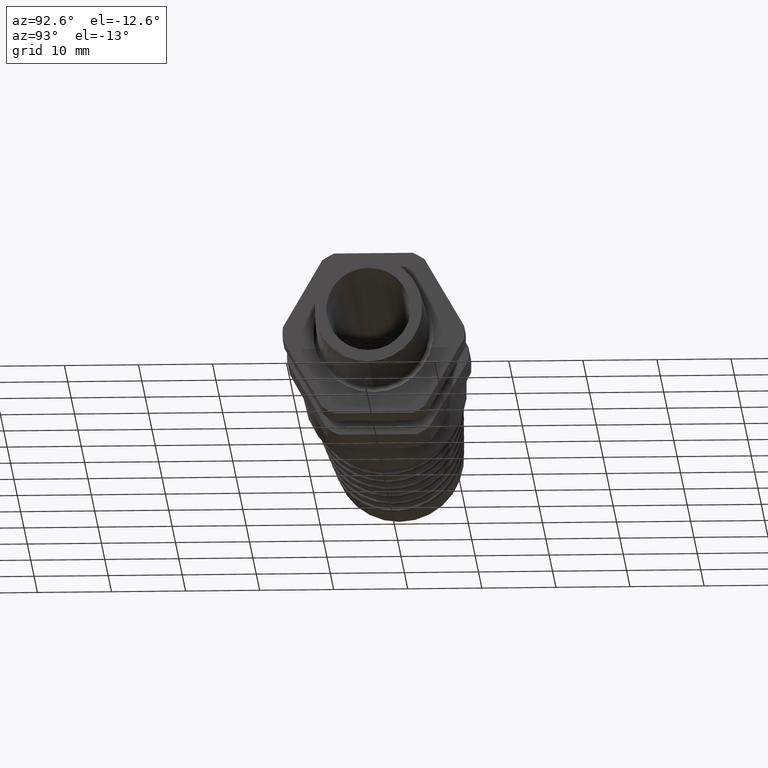
[diagram: clean part render]
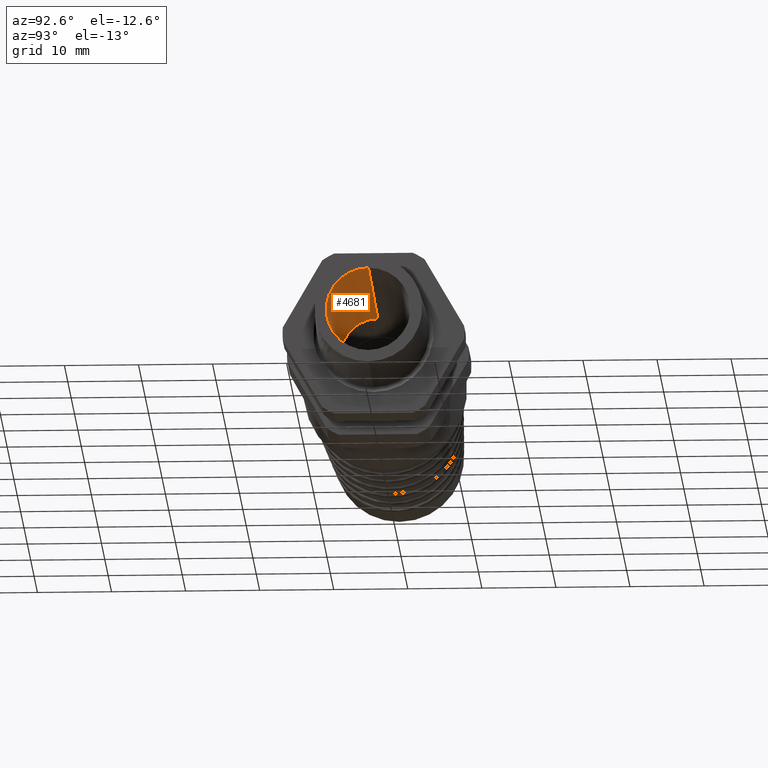
[diagram: same view with one face highlighted and labeled with its STEP entity id]
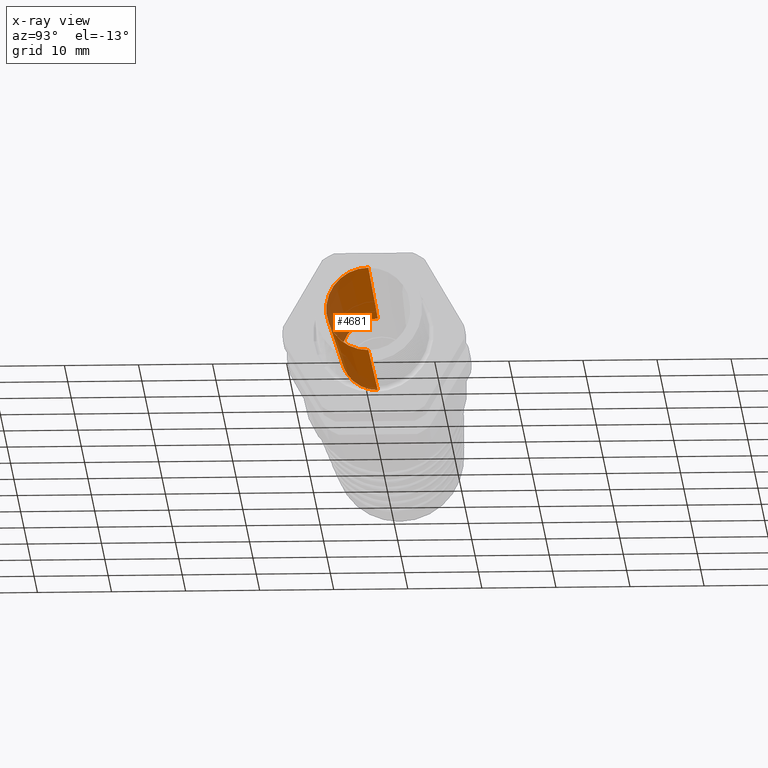
[diagram: x-ray of the same camera — body ghosted, the highlighted face saturated]
A machine part, auxiliary view. The second image highlights one B-rep face of the part: STEP entity #4681.
The next image is the same camera in x-ray: the body ghosted, the highlighted face saturated — about 11% of this face is hidden behind the body in this view.
In plain terms, the highlighted conical surface has half-angle 1.5 deg.
Its self-contained STEP definition (entity closure, byte-faithful):
#4394 = EDGE_LOOP ( 'NONE', ( #4685, #4682, #4686, #4646 ) ) ;
#4494 = EDGE_CURVE ( 'NONE', #4499, #4500, #8633, .T. ) ;
#4499 = VERTEX_POINT ( 'NONE', #8765 ) ;
#4500 = VERTEX_POINT ( 'NONE', #8762 ) ;
#4646 = ORIENTED_EDGE ( 'NONE', *, *, #4672, .F. ) ;
#4669 = VERTEX_POINT ( 'NONE', #8719 ) ;
#4672 = EDGE_CURVE ( 'NONE', #4500, #4669, #8699, .T. ) ;
#4681 = ADVANCED_FACE ( 'NONE', ( #8691 ), #8844, .F. ) ;
#4682 = ORIENTED_EDGE ( 'NONE', *, *, #4683, .T. ) ;
#4683 = EDGE_CURVE ( 'NONE', #4499, #4684, #8685, .T. ) ;
#4684 = VERTEX_POINT ( 'NONE', #8828 ) ;
#4685 = ORIENTED_EDGE ( 'NONE', *, *, #4494, .F. ) ;
#4686 = ORIENTED_EDGE ( 'NONE', *, *, #4687, .T. ) ;
#4687 = EDGE_CURVE ( 'NONE', #4684, #4669, #8822, .T. ) ;
#8626 = DIRECTION ( 'NONE',  ( 0.0000000000000000000, 0.0000000000000000000, -1.000000000000000000 ) ) ;
#8628 = DIRECTION ( 'NONE',  ( 1.000000000000000000, 0.0000000000000000000, 0.0000000000000000000 ) ) ;
#8629 = CARTESIAN_POINT ( 'NONE',  ( -0.8293700787401573300, 0.0000000000000000000, 0.0000000000000000000 ) ) ;
#8631 = AXIS2_PLACEMENT_3D ( 'NONE', #8629, #8628, #8626 ) ;
#8633 = CIRCLE ( 'NONE', #8631, 0.1950000000000000300 ) ;
#8684 = CARTESIAN_POINT ( 'NONE',  ( -0.8293700787401573300, 0.0000000000000000000, 0.0000000000000000000 ) ) ;
#8685 = LINE ( 'NONE', #8834, #8832 ) ;
#8691 = FACE_OUTER_BOUND ( 'NONE', #4394, .T. ) ;
#8694 = DIRECTION ( 'NONE',  ( 0.9996573249755573700, 0.0000000000000000000, -0.02617694830786632800 ) ) ;
#8695 = VECTOR ( 'NONE', #8694, 39.37007874015748100 ) ;
#8697 = CARTESIAN_POINT ( 'NONE',  ( -0.8293700787401573300, 0.0000000000000000000, -0.1950000000000000300 ) ) ;
#8699 = LINE ( 'NONE', #8697, #8695 ) ;
#8719 = CARTESIAN_POINT ( 'NONE',  ( 0.2800000000000000300, 0.0000000000000000000, -0.2240498778730849500 ) ) ;
#8762 = CARTESIAN_POINT ( 'NONE',  ( -0.8293700787401573300, 0.0000000000000000000, -0.1950000000000000300 ) ) ;
#8765 = CARTESIAN_POINT ( 'NONE',  ( -0.8293700787401573300, 2.565940458101814100E-017, 0.1950000000000000300 ) ) ;
#8817 = DIRECTION ( 'NONE',  ( 0.0000000000000000000, 0.0000000000000000000, -1.000000000000000000 ) ) ;
#8819 = DIRECTION ( 'NONE',  ( 1.000000000000000000, 0.0000000000000000000, 0.0000000000000000000 ) ) ;
#8820 = CARTESIAN_POINT ( 'NONE',  ( 0.2800000000000000300, 0.0000000000000000000, 0.0000000000000000000 ) ) ;
#8821 = AXIS2_PLACEMENT_3D ( 'NONE', #8820, #8819, #8817 ) ;
#8822 = CIRCLE ( 'NONE', #8821, 0.2240498778730849500 ) ;
#8828 = CARTESIAN_POINT ( 'NONE',  ( 0.2800000000000000300, 2.743819657866288800E-017, 0.2240498778730849500 ) ) ;
#8830 = DIRECTION ( 'NONE',  ( 0.9996573249755573700, 3.205751595667422300E-018, 0.02617694830786632800 ) ) ;
#8832 = VECTOR ( 'NONE', #8830, 39.37007874015748100 ) ;
#8834 = CARTESIAN_POINT ( 'NONE',  ( -0.8293700787401573300, 2.388061258337339000E-017, 0.1950000000000000300 ) ) ;
#8839 = DIRECTION ( 'NONE',  ( 0.0000000000000000000, 0.0000000000000000000, -1.000000000000000000 ) ) ;
#8841 = DIRECTION ( 'NONE',  ( 1.000000000000000000, 0.0000000000000000000, 0.0000000000000000000 ) ) ;
#8843 = AXIS2_PLACEMENT_3D ( 'NONE', #8684, #8841, #8839 ) ;
#8844 = CONICAL_SURFACE ( 'NONE', #8843, 0.1950000000000000300, 0.02617993877990811700 ) ;